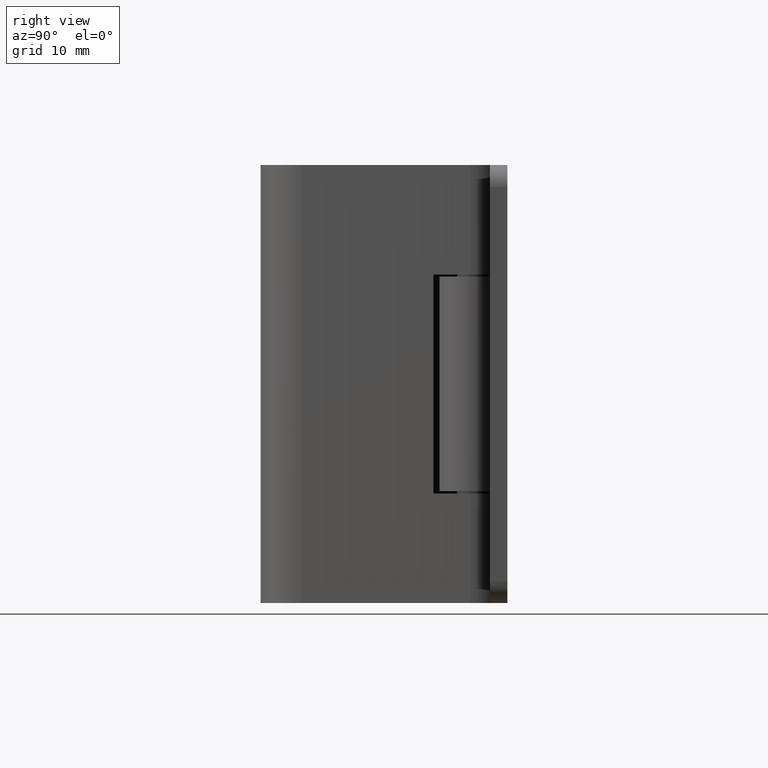
[diagram: clean part render]
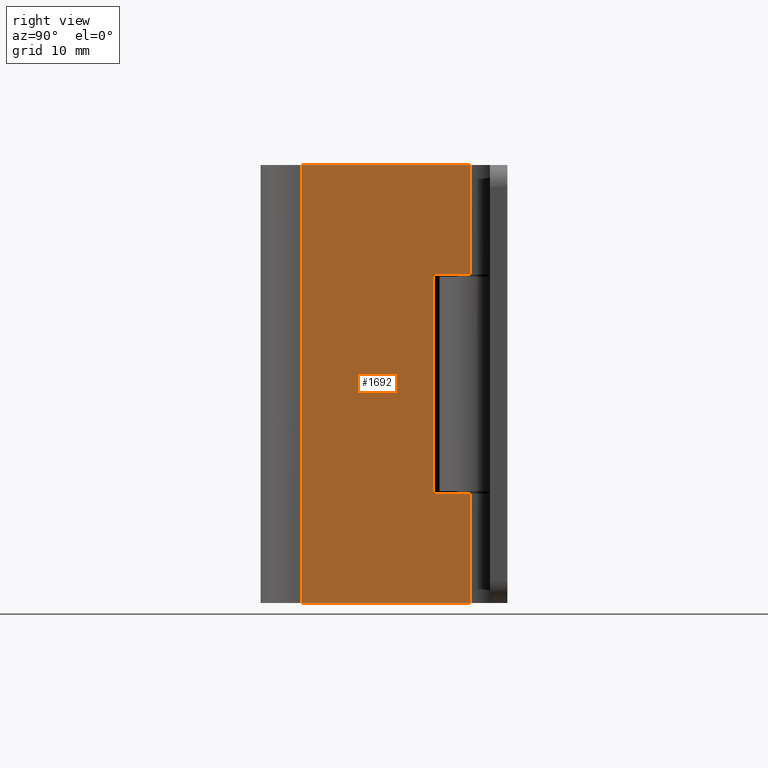
[diagram: same view with one face highlighted and labeled with its STEP entity id]
A machine part, right view. The second image highlights one B-rep face of the part: STEP entity #1692.
In plain terms, the highlighted face is a freeform B-spline surface patch.
Its self-contained STEP definition (entity closure, byte-faithful):
#853=CARTESIAN_POINT('',(2.791876966962260,-3.657242000000110,30.0));
#854=VERTEX_POINT('',#853);
#855=CARTESIAN_POINT('',(2.791876966962250,-3.657242000000110,10.0));
#856=VERTEX_POINT('',#855);
#857=CARTESIAN_POINT('',(2.791876966962260,-3.657242000000110,30.0));
#858=CARTESIAN_POINT('',(2.791876966962250,-3.657242000000110,10.0));
#859=QUASI_UNIFORM_CURVE('',1,(#857,#858),.UNSPECIFIED.,.F.,.U.);
#860=EDGE_CURVE('',#854,#856,#859,.T.);
#889=CARTESIAN_POINT('',(3.088204999999790,-0.270182999999983,10.0));
#890=VERTEX_POINT('',#889);
#891=CARTESIAN_POINT('',(2.791876966962250,-3.657242000000110,10.0));
#892=CARTESIAN_POINT('',(3.088204999999790,-0.270182999999983,10.0));
#893=QUASI_UNIFORM_CURVE('',1,(#891,#892),.UNSPECIFIED.,.F.,.U.);
#894=EDGE_CURVE('',#856,#890,#893,.T.);
#959=CARTESIAN_POINT('',(3.088204999999790,-0.270182999999983,30.0));
#960=VERTEX_POINT('',#959);
#961=CARTESIAN_POINT('',(3.088204999999790,-0.270182999999983,30.0));
#962=CARTESIAN_POINT('',(2.791876966962260,-3.657242000000110,30.0));
#963=QUASI_UNIFORM_CURVE('',1,(#961,#962),.UNSPECIFIED.,.F.,.U.);
#964=EDGE_CURVE('',#960,#854,#963,.T.);
#1203=CARTESIAN_POINT('',(1.740111053187065,-15.679031392066699,40.0));
#1204=VERTEX_POINT('',#1203);
#1220=CARTESIAN_POINT('',(3.088205000000000,-0.270183000000000,40.0));
#1221=VERTEX_POINT('',#1220);
#1222=CARTESIAN_POINT('',(1.740111053187065,-15.679031392066699,40.0));
#1223=CARTESIAN_POINT('',(3.088205000000000,-0.270183000000000,40.0));
#1224=QUASI_UNIFORM_CURVE('',1,(#1222,#1223),.UNSPECIFIED.,.F.,.U.);
#1225=EDGE_CURVE('',#1204,#1221,#1224,.T.);
#1447=CARTESIAN_POINT('',(3.088205000000000,-0.270183000000000,0.0));
#1448=VERTEX_POINT('',#1447);
#1468=CARTESIAN_POINT('',(1.740111053187065,-15.679031392066699,0.0));
#1469=VERTEX_POINT('',#1468);
#1470=CARTESIAN_POINT('',(1.740111053187065,-15.679031392066699,0.0));
#1471=CARTESIAN_POINT('',(3.088205000000000,-0.270183000000000,0.0));
#1472=QUASI_UNIFORM_CURVE('',1,(#1470,#1471),.UNSPECIFIED.,.F.,.U.);
#1473=EDGE_CURVE('',#1469,#1448,#1472,.T.);
#1661=CARTESIAN_POINT('',(3.088204999999790,-0.270182999999983,30.0));
#1662=CARTESIAN_POINT('',(3.088205000000000,-0.270183000000000,40.0));
#1663=QUASI_UNIFORM_CURVE('',1,(#1661,#1662),.UNSPECIFIED.,.F.,.U.);
#1664=EDGE_CURVE('',#960,#1221,#1663,.T.);
#1669=CARTESIAN_POINT('',(1.672773763156612,-16.448703339385091,-1.997999922472236));
#1670=CARTESIAN_POINT('',(3.155542326189138,0.499489360615913,-1.997999922472236));
#1671=CARTESIAN_POINT('',(1.672773763156612,-16.448703339385091,41.998000995355838));
#1672=CARTESIAN_POINT('',(3.155542326189138,0.499489360615913,41.998000995355838));
#1673=B_SPLINE_SURFACE_WITH_KNOTS('',1,1,((#1669,#1671),(#1670,#1672)),.UNSPECIFIED.,.F.,.F.,.U.,(2,2),(2,2),(0.0,17.012931505413320),(0.0,43.996000917828070),.UNSPECIFIED.);
#1674=ORIENTED_EDGE('',*,*,#964,.F.);
#1675=ORIENTED_EDGE('',*,*,#1664,.T.);
#1676=ORIENTED_EDGE('',*,*,#1225,.F.);
#1677=CARTESIAN_POINT('',(1.740111053187065,-15.679031392066699,0.0));
#1678=CARTESIAN_POINT('',(1.740111053187065,-15.679031392066699,40.0));
#1679=QUASI_UNIFORM_CURVE('',1,(#1677,#1678),.UNSPECIFIED.,.F.,.U.);
#1680=EDGE_CURVE('',#1469,#1204,#1679,.T.);
#1681=ORIENTED_EDGE('',*,*,#1680,.F.);
#1682=ORIENTED_EDGE('',*,*,#1473,.T.);
#1683=CARTESIAN_POINT('',(3.088205000000000,-0.270183000000000,0.0));
#1684=CARTESIAN_POINT('',(3.088204999999790,-0.270182999999983,10.0));
#1685=QUASI_UNIFORM_CURVE('',1,(#1683,#1684),.UNSPECIFIED.,.F.,.U.);
#1686=EDGE_CURVE('',#1448,#890,#1685,.T.);
#1687=ORIENTED_EDGE('',*,*,#1686,.T.);
#1688=ORIENTED_EDGE('',*,*,#894,.F.);
#1689=ORIENTED_EDGE('',*,*,#860,.F.);
#1690=EDGE_LOOP('',(#1674,#1675,#1676,#1681,#1682,#1687,#1688,#1689));
#1691=FACE_OUTER_BOUND('',#1690,.T.);
#1692=ADVANCED_FACE('',(#1691),#1673,.T.);